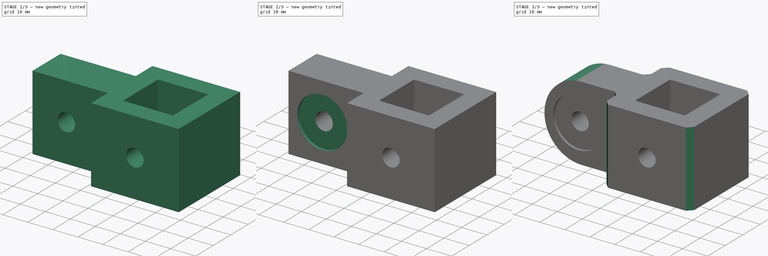
[diagram: build sequence overview — one tinted view per stage of 3, left to right]
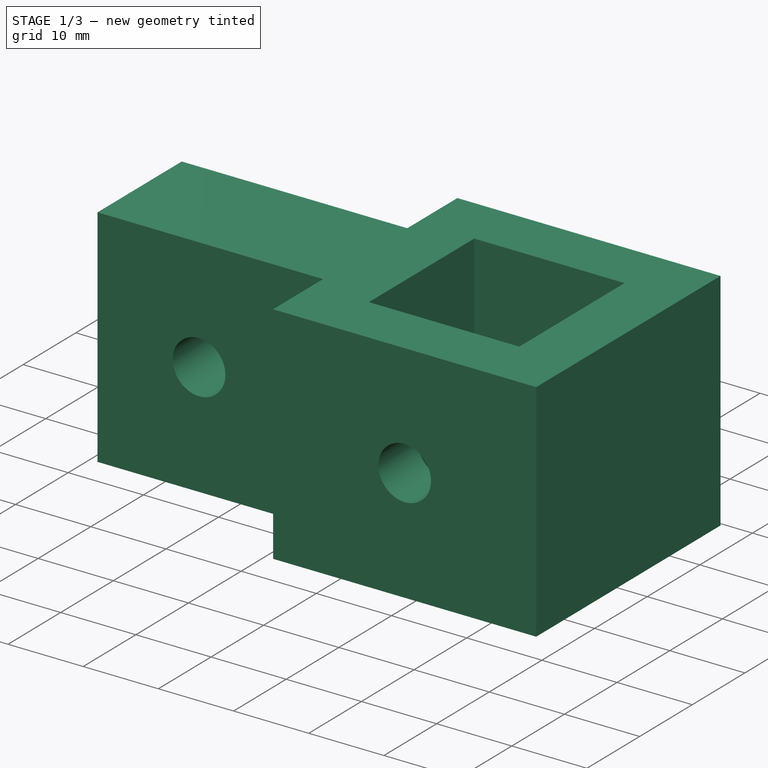
[diagram: stage 1 of 3 — iso view after this stage's code; geometry added in this stage tinted green]
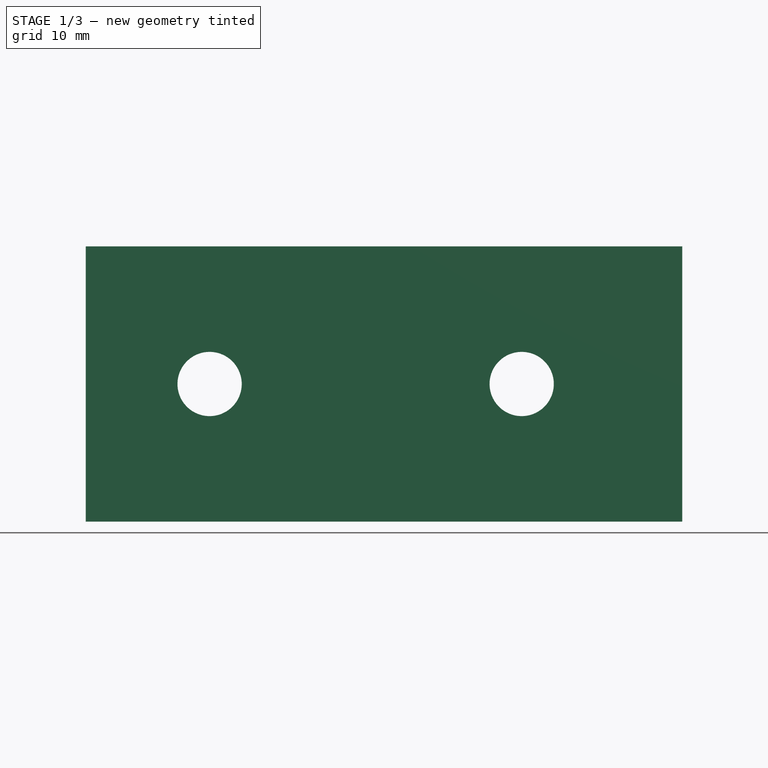
[diagram: stage 1 of 3 — front view after this stage's code; geometry added in this stage tinted green]
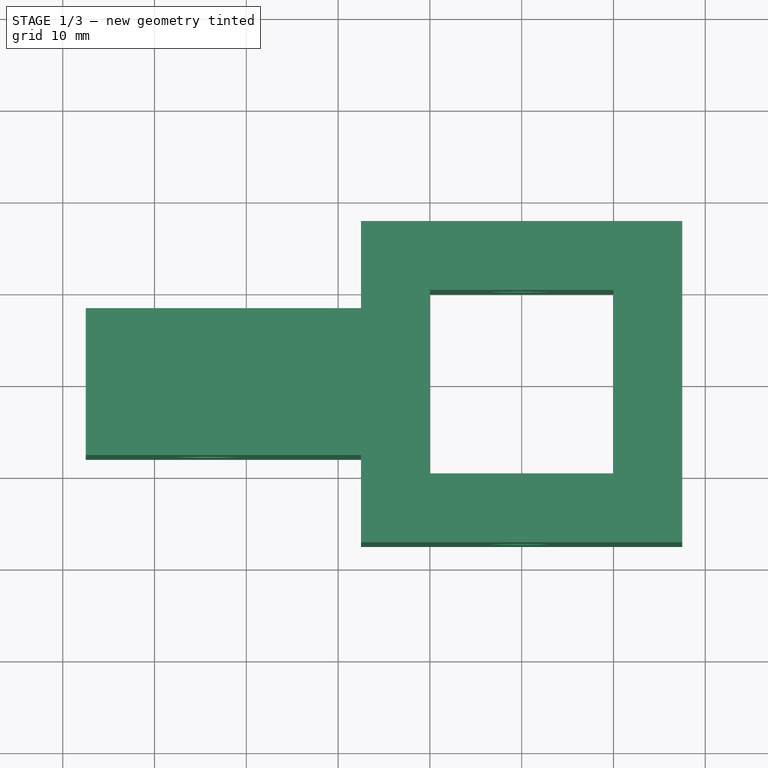
[diagram: stage 1 of 3 — top view after this stage's code; geometry added in this stage tinted green]
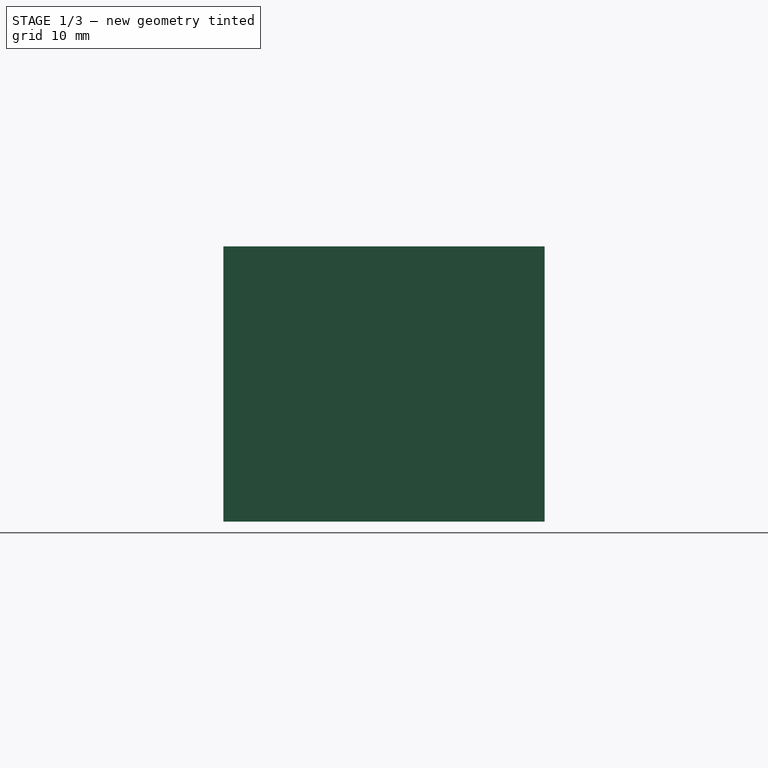
[diagram: stage 1 of 3 — right view after this stage's code; geometry added in this stage tinted green]
FCSTD DOCUMENT  (FreeCAD 0.19R)
Label: spacer_holder
License: All rights reserved
LicenseURL: http://en.wikipedia.org/wiki/All_rights_reserved
objects: Sketcher::SketchObject×4, PartDesign::Pocket×3, PartDesign::Pad×1, PartDesign::Fillet×1, PartDesign::Chamfer×1, PartDesign::Body×1
note: 17 computed .brp shape members not serialized (recipe doc carries the construction recipe); baked Part::Feature solids carry a one-line shape summary decoded from their .brp

FEATURE [Sketcher::SketchObject] Sketch
  MapMode = 5
  Support = -> [XY_Plane]
  expr: .Constraints.outer_square = .Constraints.inner_square + .Constraints.wall_thickness * 2
  expr: Constraints[36] = .Constraints.inner_square * 0.5
  expr: Constraints[31] = .Constraints.inner_square * 0.5
  expr: Constraints[32] = .Constraints.wall_thickness
  sketch-geometry (12):
    g0: LineSegment StartX=-10 StartY=10 StartZ=0 EndX=10 EndY=10 EndZ=0
    g1: LineSegment StartX=10 StartY=10 StartZ=0 EndX=10 EndY=-10 EndZ=0
    g2: LineSegment StartX=10 StartY=-10 StartZ=0 EndX=-10 EndY=-10 EndZ=0
    g3: LineSegment StartX=-10 StartY=-10 StartZ=0 EndX=-10 EndY=10 EndZ=0
    g4: LineSegment StartX=17.5 StartY=17.5 StartZ=0 EndX=17.5 EndY=-17.5 EndZ=0
    g5: LineSegment StartX=17.5 StartY=-17.5 StartZ=0 EndX=-17.5 EndY=-17.5 EndZ=0
    g6: LineSegment StartX=-17.5 StartY=-17.5 StartZ=0 EndX=-17.5 EndY=-8 EndZ=0
    g7: LineSegment StartX=-17.5 StartY=-8 StartZ=0 EndX=-47.5 EndY=-8 EndZ=0
    g8: LineSegment StartX=-47.5 StartY=-8 StartZ=0 EndX=-47.5 EndY=8 EndZ=0
    g9: LineSegment StartX=-47.5 StartY=8 StartZ=0 EndX=-17.5 EndY=8 EndZ=0
    g10: LineSegment StartX=-17.5 StartY=8 StartZ=0 EndX=-17.5 EndY=17.5 EndZ=0
    g11: LineSegment StartX=-17.5 StartY=17.5 StartZ=0 EndX=17.5 EndY=17.5 EndZ=0
  constraints (38):
    c: Horizontal(g0)
    c: Coincident(g0,g1)
    c: Vertical(g1)
    c: Coincident(g1,g2)
    c: Horizontal(g2)
    c: Coincident(g2,g3)
    c: Coincident(g3,g0)
    c: Vertical(g3)
    c: Vertical(g4)
    c: Coincident(g4,g5)
    c: Horizontal(g5)
    c: Coincident(g5,g6)
    c: Vertical(g6)
    c: Coincident(g6,g7)
    c: Horizontal(g7)
    c: Coincident(g7,g8)
    c: Vertical(g8)
    c: Coincident(g8,g9)
    c: Horizontal(g9)
    c: Coincident(g9,g10)
    c: Coincident(g11,g10)
    c: Coincident(g11,g4)
    c: Horizontal(g11)
    c: Distance(g8) = 16  'lug_width'
    c: Equal(g6,g10)
    c: Equal(g3,g2)
    c: Equal(g2,g1)
    c: Equal(g1,g0)
    c: Equal(g5,g4)
    c: Equal(g4,g11)
    c: Distance(g2) = 20  'inner_square'
    c: DistanceX(g-1,g1) = 10
    c: DistanceY(g4,g1) = 7.5
    c: Distance(g4) = 35  'outer_square'
    c: Equal(g7,g9)
    c: Distance(g9) = 30  'lug_length'
    c: DistanceY(g1,g-1) = 10
    c: DistanceX(g0,g4) = 7.5  'wall_thickness'
FEATURE [PartDesign::Pad] Pad
  Length = 30
  Length2 = 100
  Midplane = true
  Profile = -> Sketch
  Type = 0
FEATURE [Sketcher::SketchObject] Sketch001  label="SketchNotch001"
  MapMode = 5
  Placement = pos=(0,8,0) rot=(0,0.707107,0.707107;3.14159rad)
  Support = -> [Pad]
  expr: Constraints[2] = <<SketchLugHole>>.Constraints.lug_hole_indent
  sketch-geometry (1):
    g0: Circle CenterX=34 CenterY=0 CenterZ=0 NormalX=0 NormalY=0 NormalZ=1 AngleXU=0 Radius=10
  constraints (3):
    c: Diameter(g0) = 20
    c: PointOnObject(g0,g-1)
    c: DistanceX(g-1,g0) = 34
FEATURE [Sketcher::SketchObject] Sketch002  label="SketchLugHole"
  MapMode = 5
  Placement = pos=(0,0,0) rot=(0,0.707107,0.707107;3.14159rad)
  Support = -> [XZ_Plane]
  expr: .Constraints.lug_hole_indent = Sketch.Constraints.outer_square * 0.5 + Sketch.Constraints.lug_length - 13.5mm
  sketch-geometry (2):
    g0: Circle CenterX=34 CenterY=0 CenterZ=0 NormalX=0 NormalY=0 NormalZ=1 AngleXU=0 Radius=3.5
    g1: Circle CenterX=0 CenterY=0 CenterZ=0 NormalX=0 NormalY=0 NormalZ=1 AngleXU=0 Radius=3.5
  constraints (5):
    c: PointOnObject(g0,g-1)
    c: Diameter(g0) = 7
    c: DistanceX(g-1,g0) = 34  'lug_hole_indent'
    c: Coincident(g1,g-1)
    c: Equal(g1,g0)
FEATURE [PartDesign::Pocket] Pocket
  BaseFeature = -> Pad
  Length = 5
  Length2 = 100
  Midplane = true
  Profile = -> Sketch002
  Type = 1
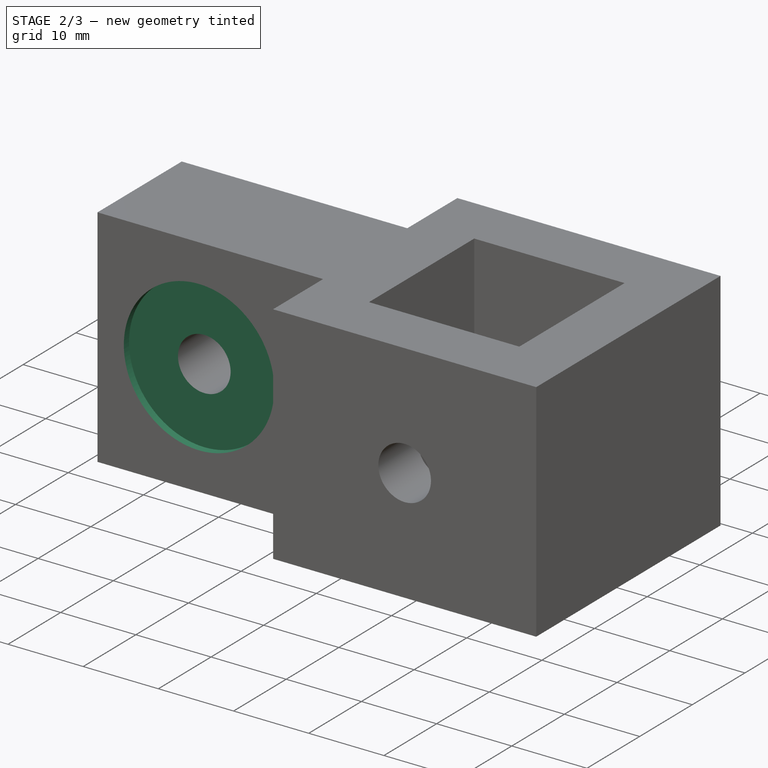
[diagram: stage 2 of 3 — iso view after this stage's code; geometry added in this stage tinted green]
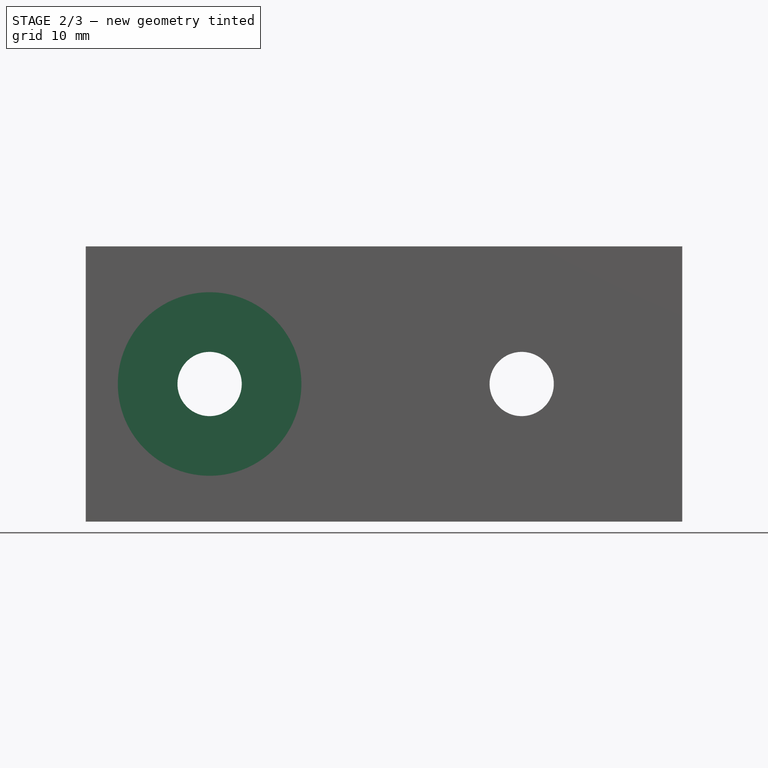
[diagram: stage 2 of 3 — front view after this stage's code; geometry added in this stage tinted green]
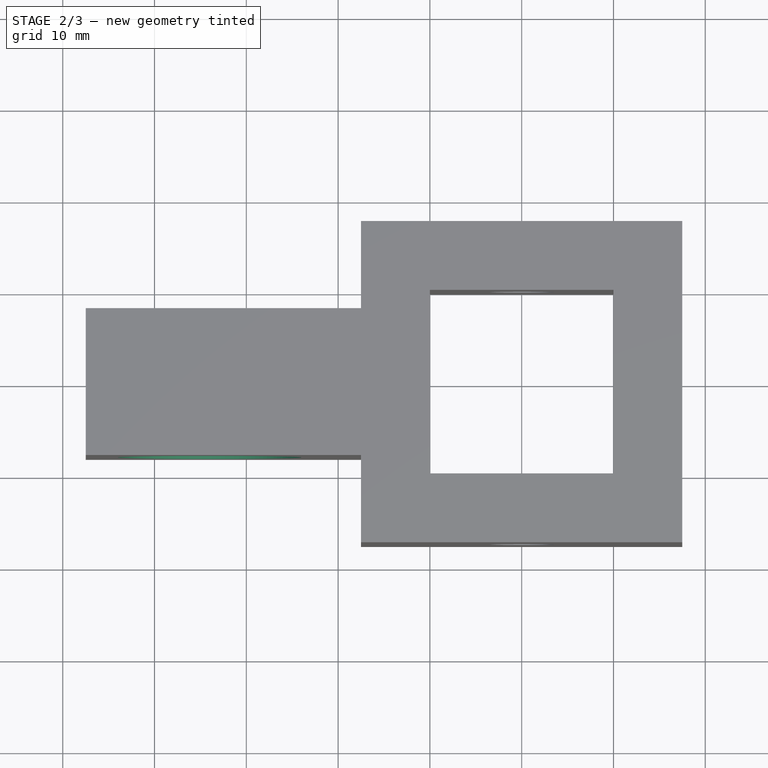
[diagram: stage 2 of 3 — top view after this stage's code; geometry added in this stage tinted green]
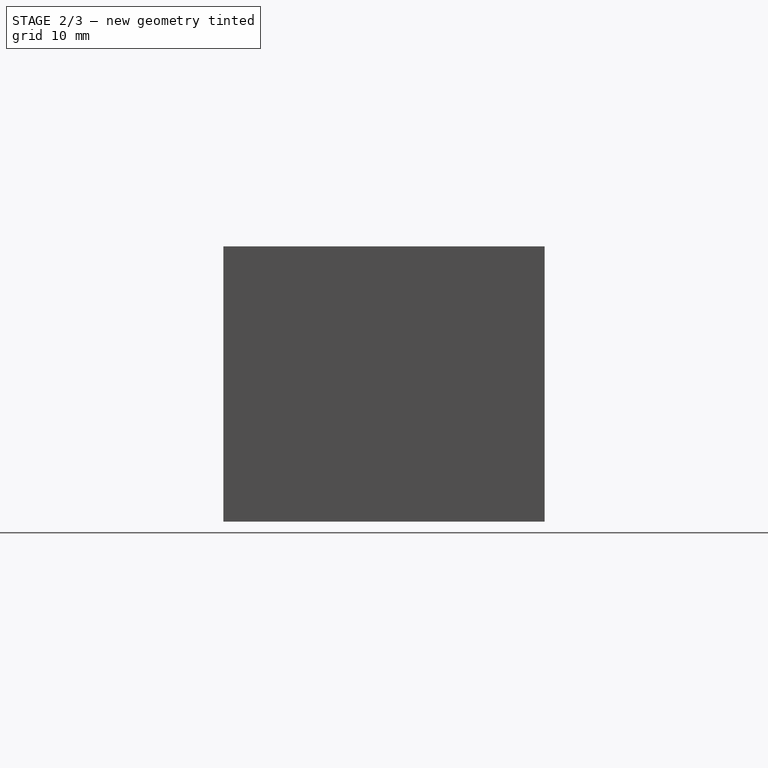
[diagram: stage 2 of 3 — right view after this stage's code; geometry added in this stage tinted green]
FEATURE [PartDesign::Pocket] Pocket001
  BaseFeature = -> Pocket
  Length = 1
  Length2 = 100
  Profile = -> Sketch001
  Type = 0
FEATURE [Sketcher::SketchObject] Sketch003  label="SketchNotch002"
  MapMode = 5
  Placement = pos=(0,-8,0) rot=(0,0.707107,0.707107;3.14159rad)
  Support = -> [Pad]
  expr: Constraints[2] = <<SketchLugHole>>.Constraints.lug_hole_indent
  sketch-geometry (1):
    g0: Circle CenterX=34 CenterY=0 CenterZ=0 NormalX=0 NormalY=0 NormalZ=1 AngleXU=0 Radius=10
  constraints (3):
    c: Diameter(g0) = 20
    c: PointOnObject(g0,g-1)
    c: DistanceX(g-1,g0) = 34
FEATURE [PartDesign::Pocket] Pocket002
  BaseFeature = -> Pocket001
  Length = 1
  Length2 = 100
  Profile = -> Sketch003
  Reversed = true
  Type = 0
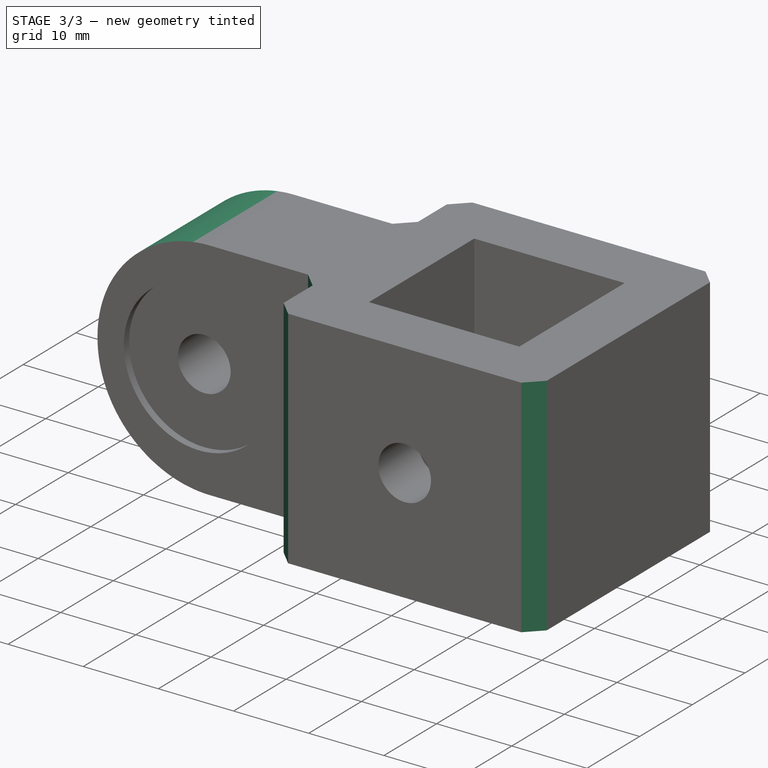
[diagram: stage 3 of 3 — iso view after this stage's code; geometry added in this stage tinted green]
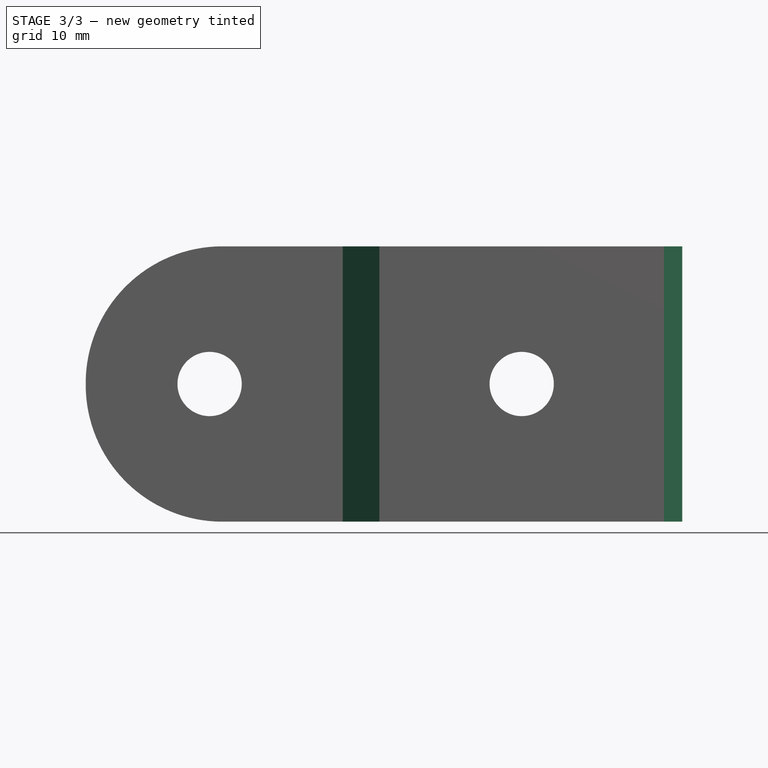
[diagram: stage 3 of 3 — front view after this stage's code; geometry added in this stage tinted green]
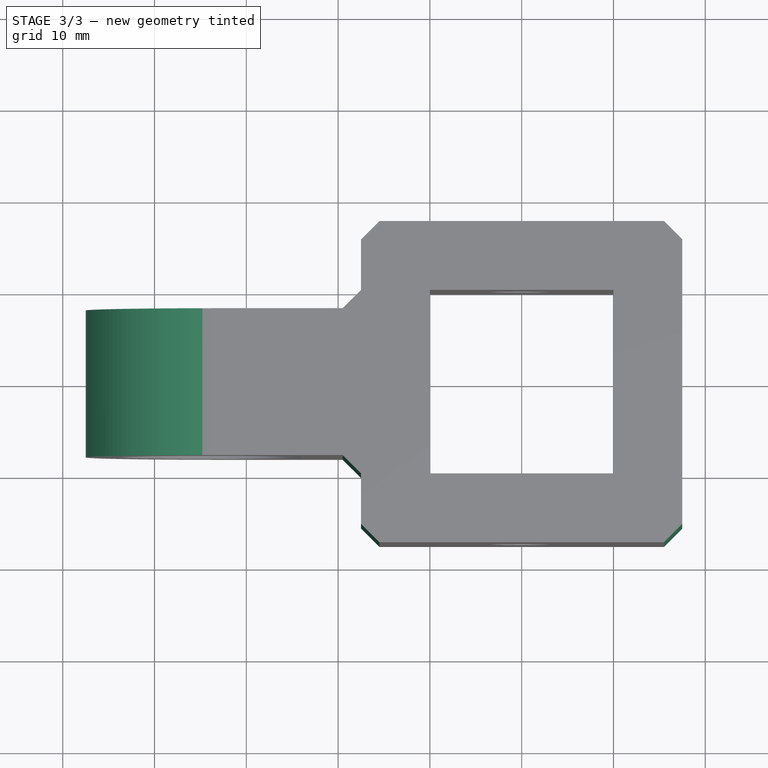
[diagram: stage 3 of 3 — top view after this stage's code; geometry added in this stage tinted green]
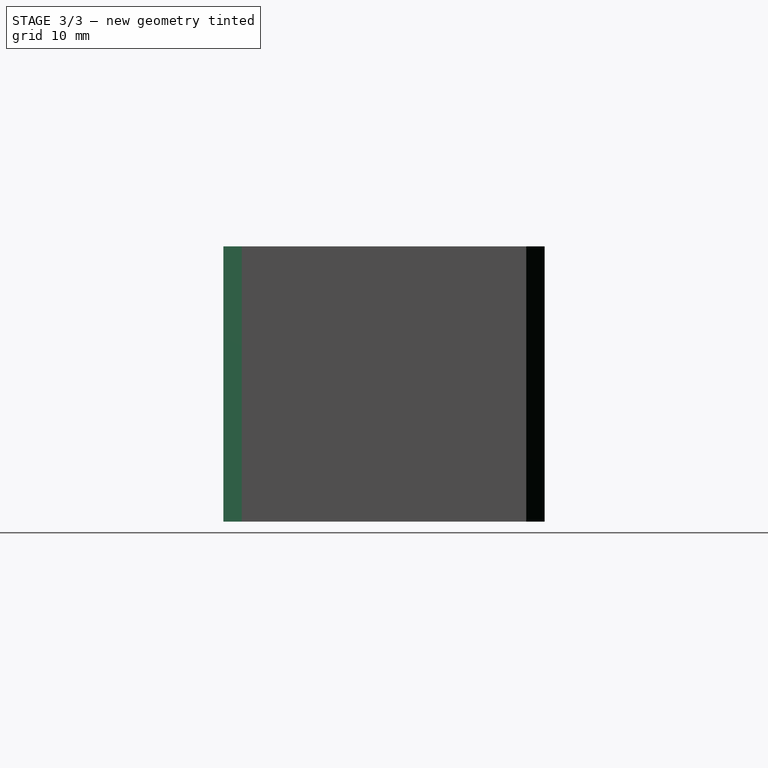
[diagram: stage 3 of 3 — right view after this stage's code; geometry added in this stage tinted green]
FEATURE [PartDesign::Fillet] Fillet
  Base = -> Pocket002 [Edge24,Edge15]
  BaseFeature = -> Pocket002
  Radius = 14.9
  SupportTransform = true
FEATURE [PartDesign::Chamfer] Chamfer
  Base = -> Fillet [Edge28,Edge21,Edge14,Edge26,Edge33,Edge31]
  BaseFeature = -> Fillet
  Size = 2
  SupportTransform = true
FEATURE [PartDesign::Body] Body
  Group = -> [Sketch,Pad,Sketch001,Sketch002,Pocket,Pocket001,Pocket002,Fillet,Chamfer]
  Origin = -> Origin
  Tip = -> Chamfer
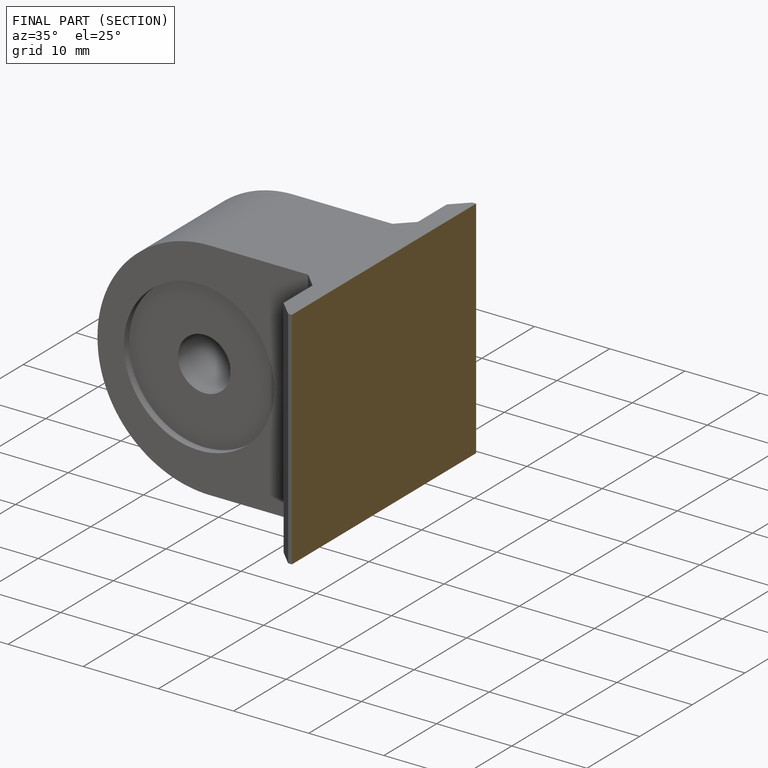
[diagram: finished part — half-section view (interior)]
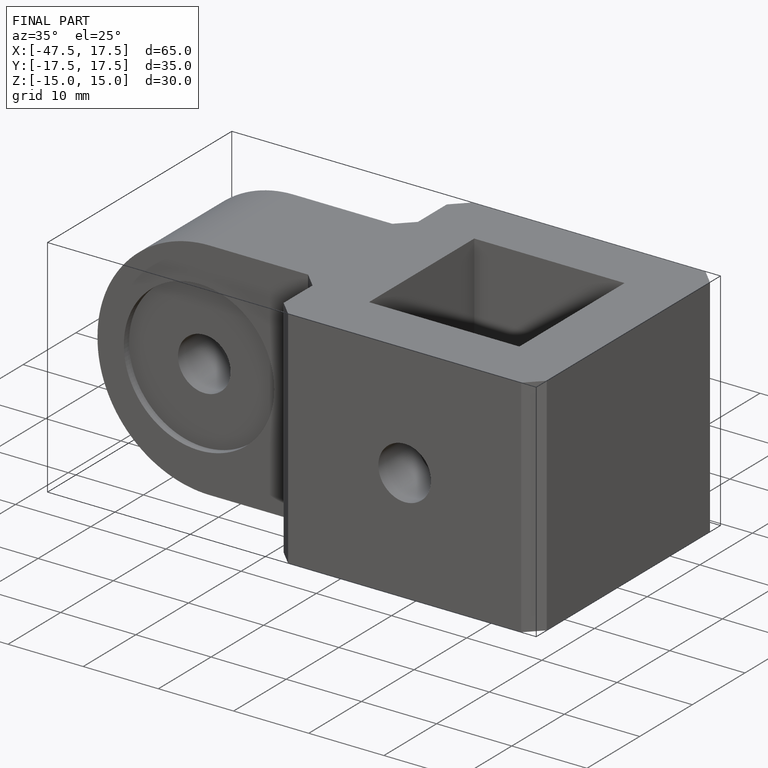
[diagram: finished part — iso view with bounding-box wireframe]
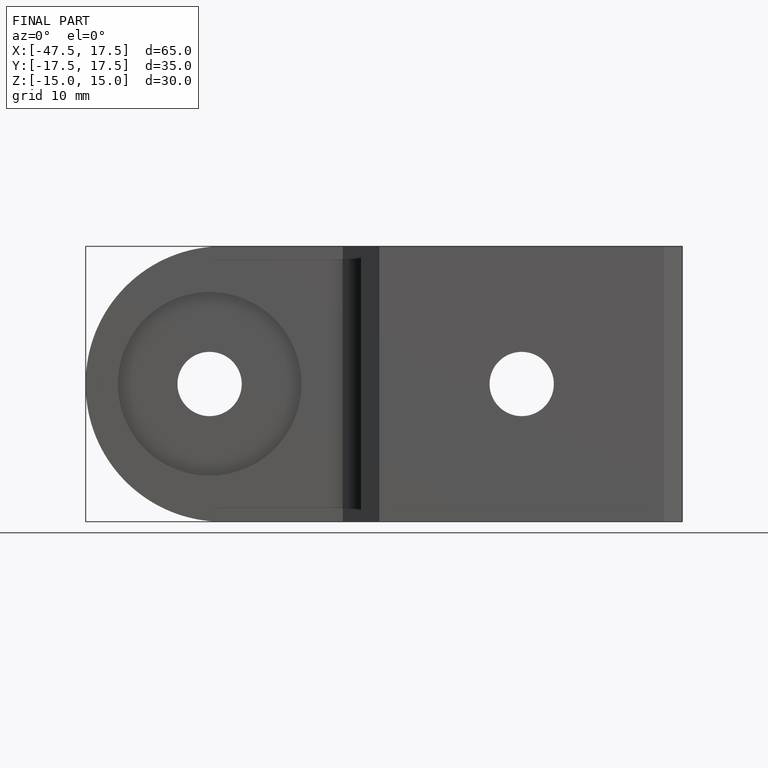
[diagram: finished part — front view with bounding-box wireframe]
